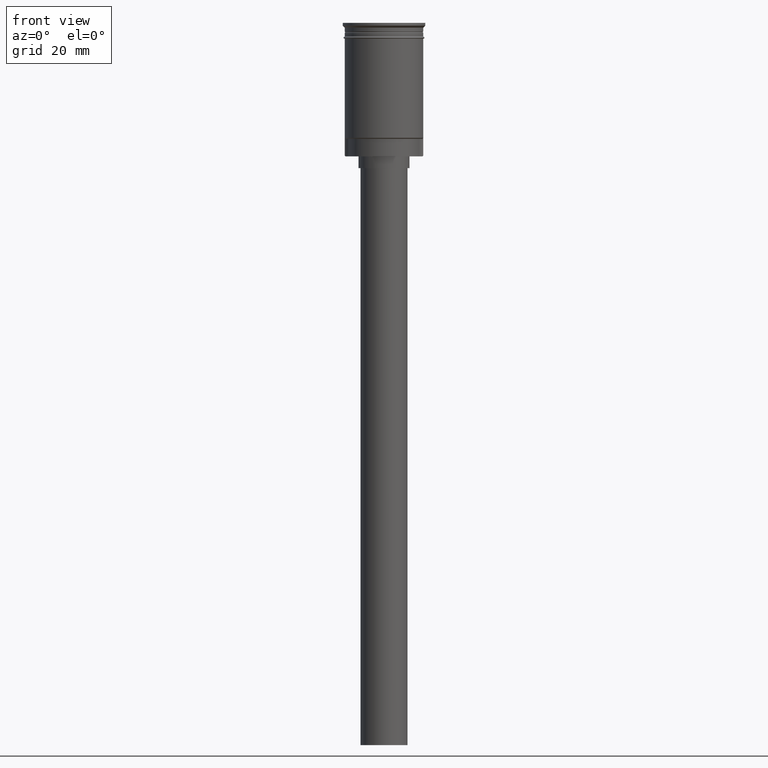
[diagram: clean part render]
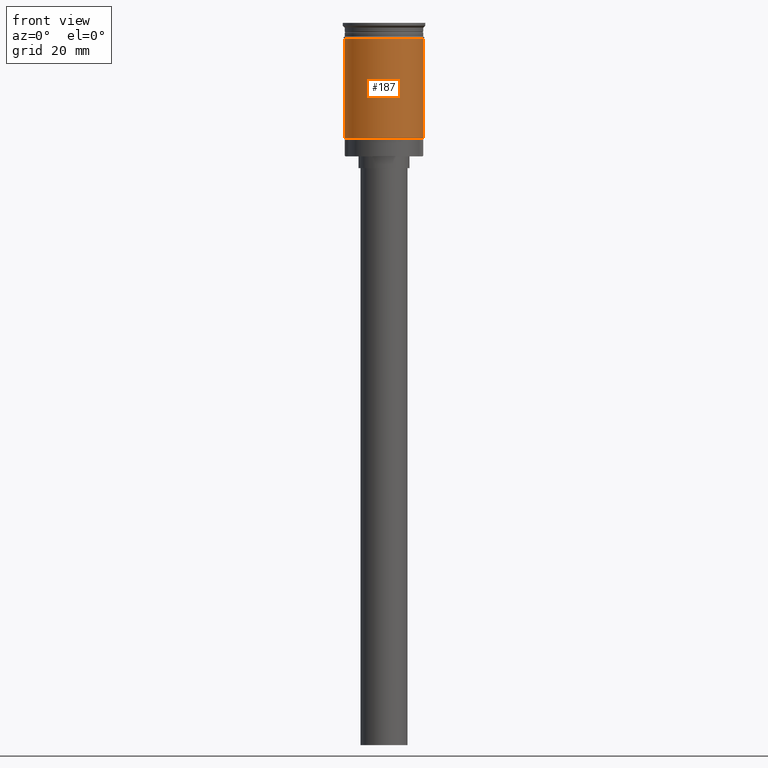
[diagram: same view with one face highlighted and labeled with its STEP entity id]
A machine part, front view. The second image highlights one B-rep face of the part: STEP entity #187.
In plain terms, the highlighted cylindrical surface (partial cylindrical patch) has radius 10 mm, axis along (-0, -0, 1).
Its self-contained STEP definition (entity closure, byte-faithful):
#35 = VERTEX_POINT ( 'NONE', #915 ) ;
#45 = ORIENTED_EDGE ( 'NONE', *, *, #306, .F. ) ;
#65 = DIRECTION ( 'NONE',  ( 1.000000000000000000, 0.000000000000000000, 0.000000000000000000 ) ) ;
#68 = DIRECTION ( 'NONE',  ( -0.000000000000000000, -0.000000000000000000, 1.000000000000000000 ) ) ;
#106 = EDGE_CURVE ( 'NONE', #559, #367, #1209, .T. ) ;
#128 = CARTESIAN_POINT ( 'NONE',  ( 0.000000000000000000, 0.000000000000000000, -29.29999999999997229 ) ) ;
#187 = ADVANCED_FACE ( 'NONE', ( #790 ), #560, .T. ) ;
#193 = EDGE_LOOP ( 'NONE', ( #1460, #315, #394, #45 ) ) ;
#306 = EDGE_CURVE ( 'NONE', #430, #35, #1157, .T. ) ;
#315 = ORIENTED_EDGE ( 'NONE', *, *, #106, .T. ) ;
#367 = VERTEX_POINT ( 'NONE', #930 ) ;
#389 = CARTESIAN_POINT ( 'NONE',  ( -9.999999999999991118, 0.000000000000000000, -29.29999999999997229 ) ) ;
#394 = ORIENTED_EDGE ( 'NONE', *, *, #1319, .T. ) ;
#430 = VERTEX_POINT ( 'NONE', #579 ) ;
#458 = AXIS2_PLACEMENT_3D ( 'NONE', #1062, #1218, #807 ) ;
#559 = VERTEX_POINT ( 'NONE', #389 ) ;
#560 = CYLINDRICAL_SURFACE ( 'NONE', #637, 9.999999999999994671 ) ;
#579 = CARTESIAN_POINT ( 'NONE',  ( -10.00000000000000000, 1.224646799147353256E-15, -3.999999999999996447 ) ) ;
#607 = LINE ( 'NONE', #1089, #1192 ) ;
#637 = AXIS2_PLACEMENT_3D ( 'NONE', #1145, #1291, #65 ) ;
#711 = DIRECTION ( 'NONE',  ( -0.000000000000000000, -0.000000000000000000, 1.000000000000000000 ) ) ;
#790 = FACE_OUTER_BOUND ( 'NONE', #193, .T. ) ;
#807 = DIRECTION ( 'NONE',  ( 1.000000000000000000, 0.000000000000000000, 0.000000000000000000 ) ) ;
#854 = DIRECTION ( 'NONE',  ( -0.000000000000000000, -0.000000000000000000, 1.000000000000000000 ) ) ;
#879 = DIRECTION ( 'NONE',  ( -1.000000000000000000, 0.000000000000000000, 0.000000000000000000 ) ) ;
#915 = CARTESIAN_POINT ( 'NONE',  ( 9.999999999999998224, 0.000000000000000000, -3.999999999999996447 ) ) ;
#916 = CARTESIAN_POINT ( 'NONE',  ( -9.999999999999994671, 1.224646799147352665E-15, 0.000000000000000000 ) ) ;
#930 = CARTESIAN_POINT ( 'NONE',  ( 9.999999999999994671, 1.224646799147352665E-15, -29.29999999999997229 ) ) ;
#1062 = CARTESIAN_POINT ( 'NONE',  ( 0.000000000000000000, 0.000000000000000000, -3.999999999999996447 ) ) ;
#1089 = CARTESIAN_POINT ( 'NONE',  ( 9.999999999999994671, 0.000000000000000000, 0.000000000000000000 ) ) ;
#1110 = VECTOR ( 'NONE', #68, 1000.000000000000000 ) ;
#1145 = CARTESIAN_POINT ( 'NONE',  ( 0.000000000000000000, 0.000000000000000000, 0.000000000000000000 ) ) ;
#1157 = CIRCLE ( 'NONE', #458, 9.999999999999998224 ) ;
#1191 = EDGE_CURVE ( 'NONE', #559, #430, #1304, .T. ) ;
#1192 = VECTOR ( 'NONE', #711, 1000.000000000000000 ) ;
#1209 = CIRCLE ( 'NONE', #1364, 9.999999999999994671 ) ;
#1218 = DIRECTION ( 'NONE',  ( -0.000000000000000000, -0.000000000000000000, 1.000000000000000000 ) ) ;
#1291 = DIRECTION ( 'NONE',  ( -0.000000000000000000, -0.000000000000000000, 1.000000000000000000 ) ) ;
#1304 = LINE ( 'NONE', #916, #1110 ) ;
#1319 = EDGE_CURVE ( 'NONE', #367, #35, #607, .T. ) ;
#1364 = AXIS2_PLACEMENT_3D ( 'NONE', #128, #854, #879 ) ;
#1460 = ORIENTED_EDGE ( 'NONE', *, *, #1191, .F. ) ;